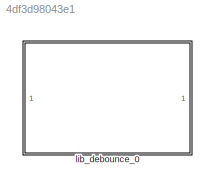
MODEL slx_4df3d98043e1
KIND library
CONFIG AbsTol = auto
CONFIG EnableMultiTasking = off
CONFIG FixedStep = auto
CONFIG MaxStep = auto
CONFIG MinStep = auto
CONFIG RelTol = 1e-3
CONFIG SampleTimeConstraint = Unconstrained
CONFIG SolverName = VariableStepAuto
CONFIG StartTime = 0.0
CONFIG StopTime = 10.0
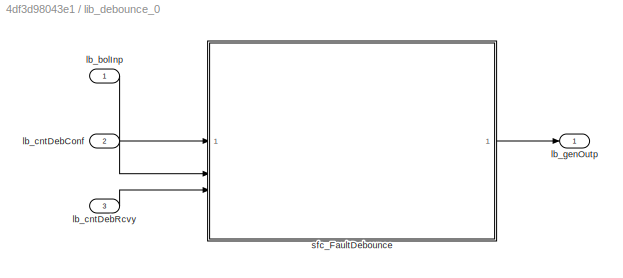
BLOCK [SubSystem] lib_debounce_0
  RTWFcnName = Debounce
  RTWFcnNameOpts = User specified
  RTWFileName = VHIT_control_library
  TreatAsAtomicUnit = on
BLOCK [Inport] lib_debounce_0/lb_bolInp
BLOCK [Inport] lib_debounce_0/lb_cntDebConf
  Port = 2
BLOCK [Inport] lib_debounce_0/lb_cntDebRcvy
  Port = 3
BLOCK [Outport] lib_debounce_0/lb_genOutp
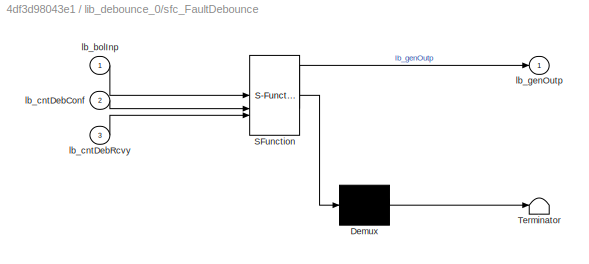
BLOCK [SubSystem] lib_debounce_0/sfc_FaultDebounce
  ErrorFcn = Stateflow.Translate.translate
  PermitHierarchicalResolution = ExplicitOnly
  SFBlockType = Chart
  TreatAsAtomicUnit = on
BLOCK [Demux] lib_debounce_0/sfc_FaultDebounce/ Demux 
  Outputs = 1
BLOCK [S-Function] lib_debounce_0/sfc_FaultDebounce/ SFunction 
  EnableBusSupport = off
  FunctionName = sf_sfun
  PortCounts = [3 2]
  SFcnIsStateOwnerBlock = off
  SFunctionDeploymentMode = off
  Tag = Stateflow S-Function 7
BLOCK [Terminator] lib_debounce_0/sfc_FaultDebounce/ Terminator 
BLOCK [Inport] lib_debounce_0/sfc_FaultDebounce/lb_bolInp
BLOCK [Inport] lib_debounce_0/sfc_FaultDebounce/lb_cntDebConf
  Port = 2
BLOCK [Inport] lib_debounce_0/sfc_FaultDebounce/lb_cntDebRcvy
  Port = 3
BLOCK [Outport] lib_debounce_0/sfc_FaultDebounce/lb_genOutp
LINE lib_debounce_0/lb_bolInp:1 -> lib_debounce_0/sfc_FaultDebounce:1
LINE lib_debounce_0/lb_cntDebConf:1 -> lib_debounce_0/sfc_FaultDebounce:2
LINE lib_debounce_0/lb_cntDebRcvy:1 -> lib_debounce_0/sfc_FaultDebounce:3
LINE lib_debounce_0/sfc_FaultDebounce:1 -> lib_debounce_0/lb_genOutp:1
CHART lib_debounce_0/sfc_FaultDebounce states=4 transitions=16
  STATE_LABEL 'Wait\n\nen:  lb_cntDebCond = uint16(0);\n       lb_genOutp = false;'
  STATE_LABEL 'Confirming\n/*Set Bit0*/\nen:lb_cntDebCond++;lb_genOutp = false;\ndu:lb_cntDebCond++;'
  STATE_LABEL 'Confirm\n/*Set Bit0 Bit1*/\nen: lb_cntDebCond = uint16(0);lb_genOutp = true;'
  STATE_LABEL 'Repairing\n/*Clear Bit0*/\nen:lb_cntDebCond++;lb_genOutp = true;\ndu:lb_cntDebCond++;'
CHART  states=0 transitions=0
